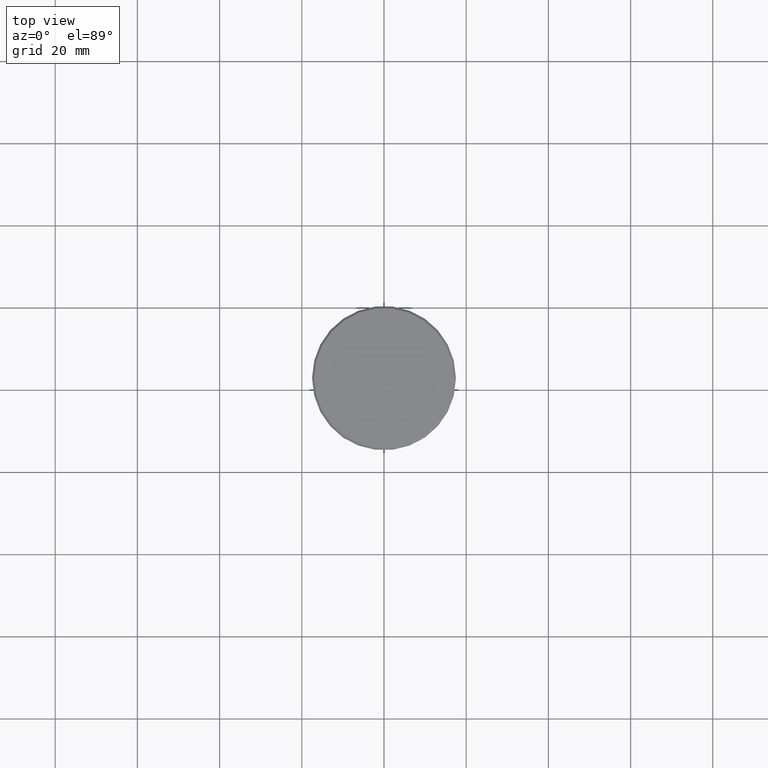
[diagram: clean part render]
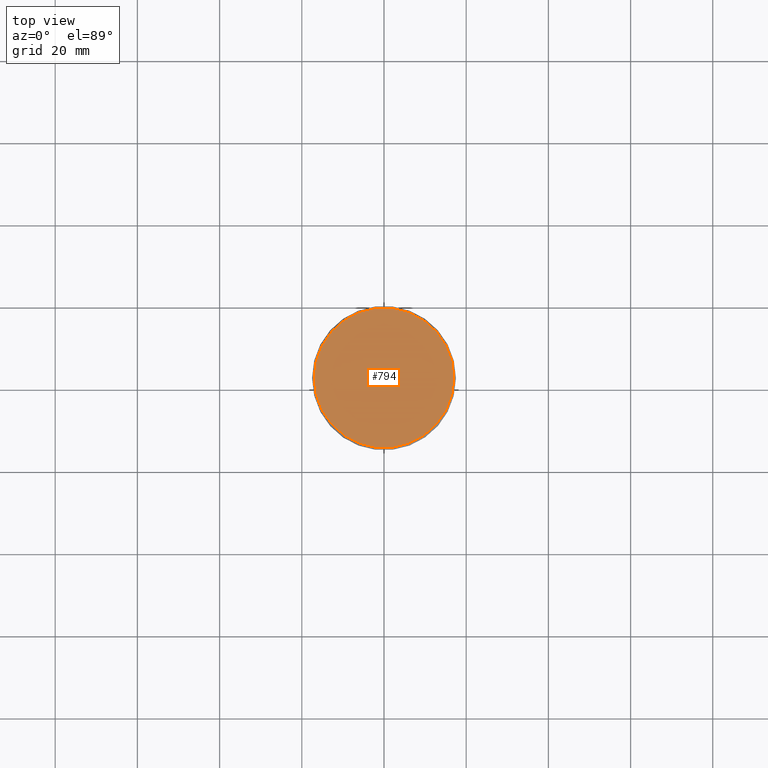
[diagram: same view with one face highlighted and labeled with its STEP entity id]
A machine part, top view. The second image highlights one B-rep face of the part: STEP entity #794.
In plain terms, the highlighted planar face has unit normal (0, -0, 1).
Its self-contained STEP definition (entity closure, byte-faithful):
#244 = VERTEX_POINT ( 'NONE', #640 ) ;
#257 = CIRCLE ( 'NONE', #1108, 16.99999999999996092 ) ;
#308 = PLANE ( 'NONE',  #476 ) ;
#312 = AXIS2_PLACEMENT_3D ( 'NONE', #333, #1131, #317 ) ;
#317 = DIRECTION ( 'NONE',  ( 1.000000000000000000, 0.000000000000000000, 0.000000000000000000 ) ) ;
#333 = CARTESIAN_POINT ( 'NONE',  ( 0.000000000000000000, 0.000000000000000000, 0.000000000000000000 ) ) ;
#399 = DIRECTION ( 'NONE',  ( 0.000000000000000000, -0.000000000000000000, 1.000000000000000000 ) ) ;
#443 = EDGE_CURVE ( 'NONE', #244, #579, #257, .T. ) ;
#476 = AXIS2_PLACEMENT_3D ( 'NONE', #767, #399, #580 ) ;
#489 = FACE_OUTER_BOUND ( 'NONE', #792, .T. ) ;
#503 = DIRECTION ( 'NONE',  ( 1.000000000000000000, 0.000000000000000000, 0.000000000000000000 ) ) ;
#579 = VERTEX_POINT ( 'NONE', #626 ) ;
#580 = DIRECTION ( 'NONE',  ( 1.000000000000000000, 0.000000000000000000, 0.000000000000000000 ) ) ;
#626 = CARTESIAN_POINT ( 'NONE',  ( 16.99999999999996092, 2.112515728529182095E-15, 0.000000000000000000 ) ) ;
#640 = CARTESIAN_POINT ( 'NONE',  ( -16.99999999999996092, 0.000000000000000000, 0.000000000000000000 ) ) ;
#752 = ORIENTED_EDGE ( 'NONE', *, *, #835, .T. ) ;
#767 = CARTESIAN_POINT ( 'NONE',  ( 0.000000000000000000, 0.000000000000000000, 0.000000000000000000 ) ) ;
#792 = EDGE_LOOP ( 'NONE', ( #1164, #752 ) ) ;
#794 = ADVANCED_FACE ( 'NONE', ( #489 ), #308, .T. ) ;
#835 = EDGE_CURVE ( 'NONE', #579, #244, #955, .T. ) ;
#955 = CIRCLE ( 'NONE', #312, 16.99999999999996092 ) ;
#961 = DIRECTION ( 'NONE',  ( -0.000000000000000000, -0.000000000000000000, 1.000000000000000000 ) ) ;
#1108 = AXIS2_PLACEMENT_3D ( 'NONE', #1151, #961, #503 ) ;
#1131 = DIRECTION ( 'NONE',  ( -0.000000000000000000, -0.000000000000000000, 1.000000000000000000 ) ) ;
#1151 = CARTESIAN_POINT ( 'NONE',  ( 0.000000000000000000, 0.000000000000000000, 0.000000000000000000 ) ) ;
#1164 = ORIENTED_EDGE ( 'NONE', *, *, #443, .T. ) ;